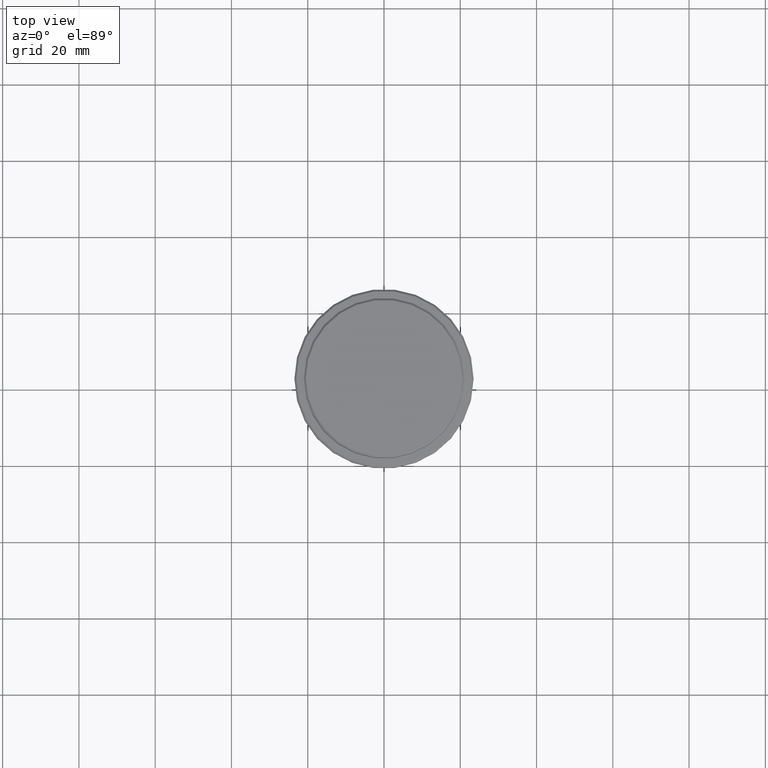
[diagram: clean part render]
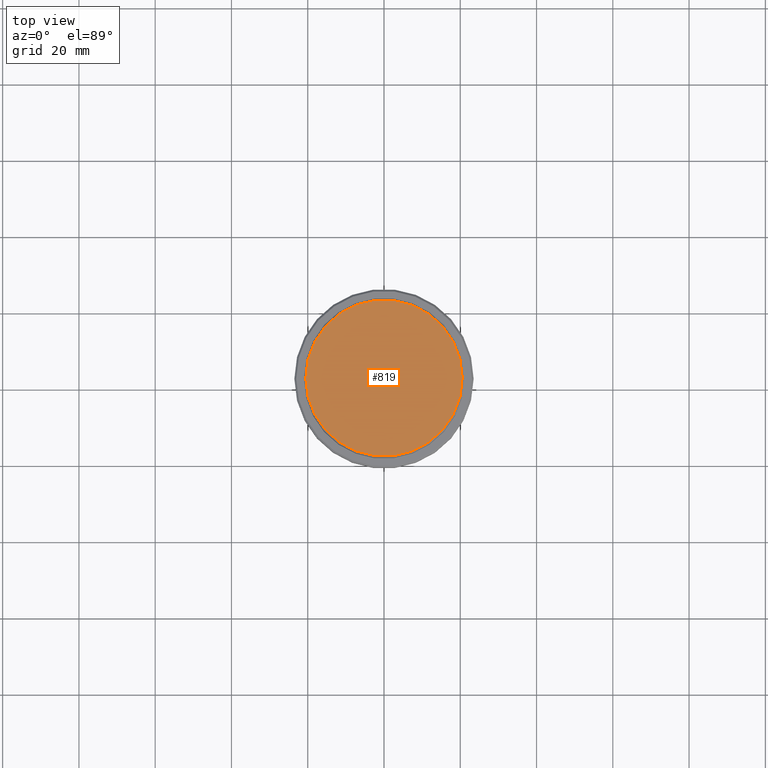
[diagram: same view with one face highlighted and labeled with its STEP entity id]
A machine part, top view. The second image highlights one B-rep face of the part: STEP entity #819.
In plain terms, the highlighted planar face has unit normal (0, -0, 1).
Its self-contained STEP definition (entity closure, byte-faithful):
#290 = VERTEX_POINT ( 'NONE', #872 ) ;
#420 = CARTESIAN_POINT ( 'NONE',  ( 0.000000000000000000, 0.000000000000000000, 0.000000000000000000 ) ) ;
#443 = DIRECTION ( 'NONE',  ( 1.000000000000000000, 0.000000000000000000, 0.000000000000000000 ) ) ;
#450 = DIRECTION ( 'NONE',  ( -0.000000000000000000, -0.000000000000000000, 1.000000000000000000 ) ) ;
#453 = AXIS2_PLACEMENT_3D ( 'NONE', #1088, #1290, #724 ) ;
#491 = ORIENTED_EDGE ( 'NONE', *, *, #1402, .T. ) ;
#518 = EDGE_CURVE ( 'NONE', #290, #600, #1383, .T. ) ;
#568 = DIRECTION ( 'NONE',  ( 1.000000000000000000, 0.000000000000000000, 0.000000000000000000 ) ) ;
#593 = AXIS2_PLACEMENT_3D ( 'NONE', #420, #450, #443 ) ;
#600 = VERTEX_POINT ( 'NONE', #646 ) ;
#638 = CIRCLE ( 'NONE', #593, 20.49999999999998934 ) ;
#646 = CARTESIAN_POINT ( 'NONE',  ( -20.49999999999998934, 0.000000000000000000, 0.000000000000000000 ) ) ;
#724 = DIRECTION ( 'NONE',  ( 1.000000000000000000, 0.000000000000000000, 0.000000000000000000 ) ) ;
#773 = CARTESIAN_POINT ( 'NONE',  ( 0.000000000000000000, 0.000000000000000000, 0.000000000000000000 ) ) ;
#819 = ADVANCED_FACE ( 'NONE', ( #852 ), #856, .T. ) ;
#820 = AXIS2_PLACEMENT_3D ( 'NONE', #773, #1409, #568 ) ;
#852 = FACE_OUTER_BOUND ( 'NONE', #888, .T. ) ;
#856 = PLANE ( 'NONE',  #453 ) ;
#872 = CARTESIAN_POINT ( 'NONE',  ( 20.49999999999998934, 2.541142108230757480E-15, 0.000000000000000000 ) ) ;
#888 = EDGE_LOOP ( 'NONE', ( #491, #1313 ) ) ;
#1088 = CARTESIAN_POINT ( 'NONE',  ( 0.000000000000000000, 0.000000000000000000, 0.000000000000000000 ) ) ;
#1290 = DIRECTION ( 'NONE',  ( 0.000000000000000000, -0.000000000000000000, 1.000000000000000000 ) ) ;
#1313 = ORIENTED_EDGE ( 'NONE', *, *, #518, .T. ) ;
#1383 = CIRCLE ( 'NONE', #820, 20.49999999999998934 ) ;
#1402 = EDGE_CURVE ( 'NONE', #600, #290, #638, .T. ) ;
#1409 = DIRECTION ( 'NONE',  ( -0.000000000000000000, -0.000000000000000000, 1.000000000000000000 ) ) ;